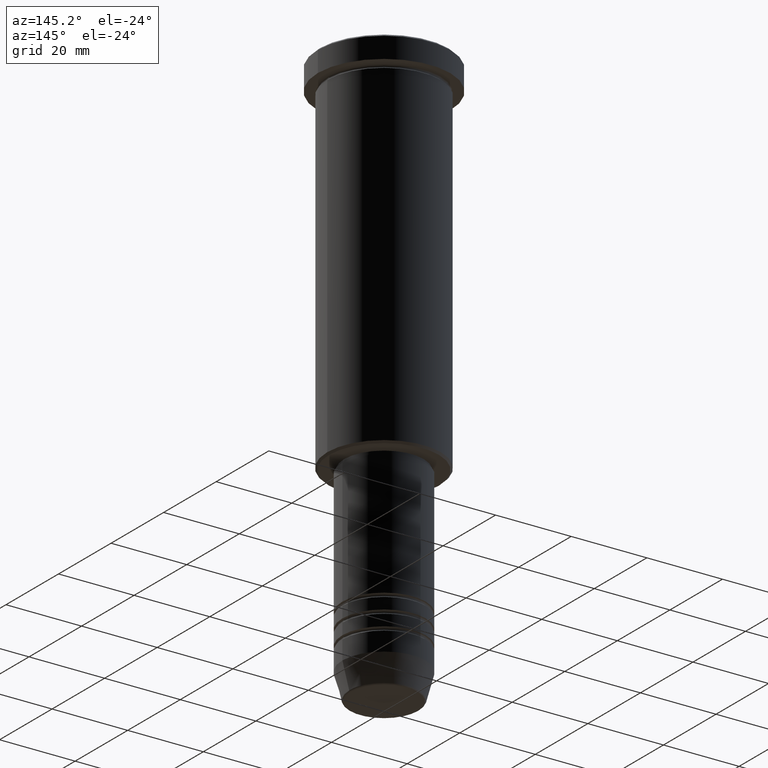
[diagram: clean part render]
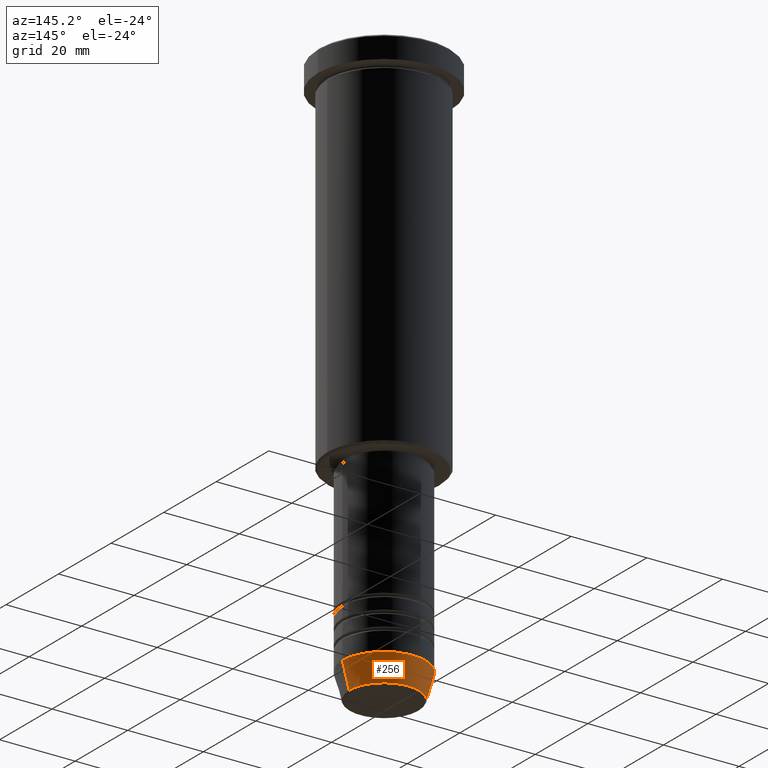
[diagram: same view with one face highlighted and labeled with its STEP entity id]
A machine part, auxiliary view. The second image highlights one B-rep face of the part: STEP entity #256.
In plain terms, the highlighted conical surface has half-angle 15 deg.
Its self-contained STEP definition (entity closure, byte-faithful):
#52 = VERTEX_POINT ( 'NONE', #490 ) ;
#59 = CARTESIAN_POINT ( 'NONE',  ( -9.223655072137189492, 1.238341722557647202E-15, -150.6294095225512706 ) ) ;
#74 = CARTESIAN_POINT ( 'NONE',  ( 11.00000000000000000, 0.000000000000000000, -144.0000000000000284 ) ) ;
#108 = VECTOR ( 'NONE', #960, 1000.000000000000000 ) ;
#143 = EDGE_CURVE ( 'NONE', #152, #416, #588, .T. ) ;
#152 = VERTEX_POINT ( 'NONE', #59 ) ;
#228 = AXIS2_PLACEMENT_3D ( 'NONE', #1078, #913, #344 ) ;
#237 = EDGE_CURVE ( 'NONE', #52, #152, #1030, .T. ) ;
#256 = ADVANCED_FACE ( 'NONE', ( #318 ), #689, .T. ) ;
#278 = VECTOR ( 'NONE', #1112, 1000.000000000000000 ) ;
#313 = AXIS2_PLACEMENT_3D ( 'NONE', #781, #607, #790 ) ;
#318 = FACE_OUTER_BOUND ( 'NONE', #1089, .T. ) ;
#344 = DIRECTION ( 'NONE',  ( 1.000000000000000000, 0.000000000000000000, 0.000000000000000000 ) ) ;
#416 = VERTEX_POINT ( 'NONE', #560 ) ;
#486 = ORIENTED_EDGE ( 'NONE', *, *, #237, .T. ) ;
#490 = CARTESIAN_POINT ( 'NONE',  ( 9.223655072137189492, 0.000000000000000000, -150.6294095225512706 ) ) ;
#513 = CARTESIAN_POINT ( 'NONE',  ( 0.000000000000000000, 0.000000000000000000, -150.6294095225512706 ) ) ;
#514 = EDGE_CURVE ( 'NONE', #52, #773, #656, .T. ) ;
#560 = CARTESIAN_POINT ( 'NONE',  ( -11.00000000000000000, 1.347111479062088405E-15, -144.0000000000000284 ) ) ;
#588 = LINE ( 'NONE', #1040, #108 ) ;
#600 = ORIENTED_EDGE ( 'NONE', *, *, #514, .F. ) ;
#607 = DIRECTION ( 'NONE',  ( -0.000000000000000000, -0.000000000000000000, 1.000000000000000000 ) ) ;
#656 = LINE ( 'NONE', #754, #278 ) ;
#689 = CONICAL_SURFACE ( 'NONE', #313, 11.00000000000000000, 0.2617993877991500740 ) ;
#738 = EDGE_CURVE ( 'NONE', #773, #416, #900, .T. ) ;
#754 = CARTESIAN_POINT ( 'NONE',  ( 11.00000000000000000, 0.000000000000000000, -144.0000000000000284 ) ) ;
#762 = AXIS2_PLACEMENT_3D ( 'NONE', #513, #764, #859 ) ;
#764 = DIRECTION ( 'NONE',  ( -0.000000000000000000, -0.000000000000000000, 1.000000000000000000 ) ) ;
#773 = VERTEX_POINT ( 'NONE', #74 ) ;
#781 = CARTESIAN_POINT ( 'NONE',  ( 0.000000000000000000, 0.000000000000000000, -144.0000000000000284 ) ) ;
#790 = DIRECTION ( 'NONE',  ( 1.000000000000000000, 0.000000000000000000, 0.000000000000000000 ) ) ;
#859 = DIRECTION ( 'NONE',  ( 1.000000000000000000, 0.000000000000000000, 0.000000000000000000 ) ) ;
#900 = CIRCLE ( 'NONE', #228, 11.00000000000000000 ) ;
#913 = DIRECTION ( 'NONE',  ( -0.000000000000000000, -0.000000000000000000, 1.000000000000000000 ) ) ;
#960 = DIRECTION ( 'NONE',  ( -0.2588190451025213501, 3.169619151431772337E-17, 0.9659258262890680902 ) ) ;
#993 = ORIENTED_EDGE ( 'NONE', *, *, #143, .T. ) ;
#1030 = CIRCLE ( 'NONE', #762, 9.223655072137189492 ) ;
#1040 = CARTESIAN_POINT ( 'NONE',  ( -11.00000000000000000, 1.347111479062088405E-15, -144.0000000000000284 ) ) ;
#1078 = CARTESIAN_POINT ( 'NONE',  ( 0.000000000000000000, 0.000000000000000000, -144.0000000000000284 ) ) ;
#1089 = EDGE_LOOP ( 'NONE', ( #486, #993, #1119, #600 ) ) ;
#1112 = DIRECTION ( 'NONE',  ( 0.2588190451025213501, 0.000000000000000000, 0.9659258262890680902 ) ) ;
#1119 = ORIENTED_EDGE ( 'NONE', *, *, #738, .F. ) ;